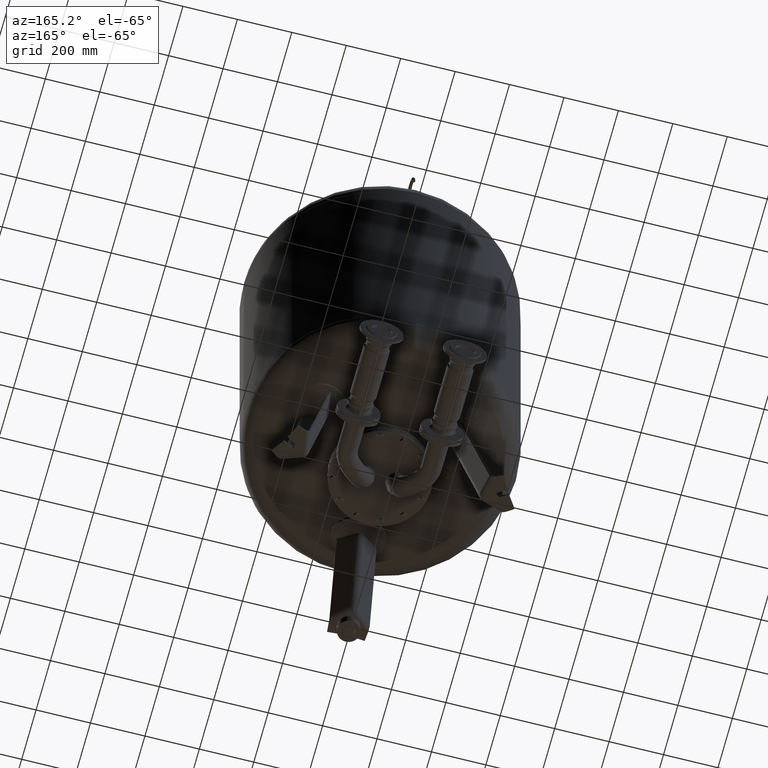
[diagram: clean part render]
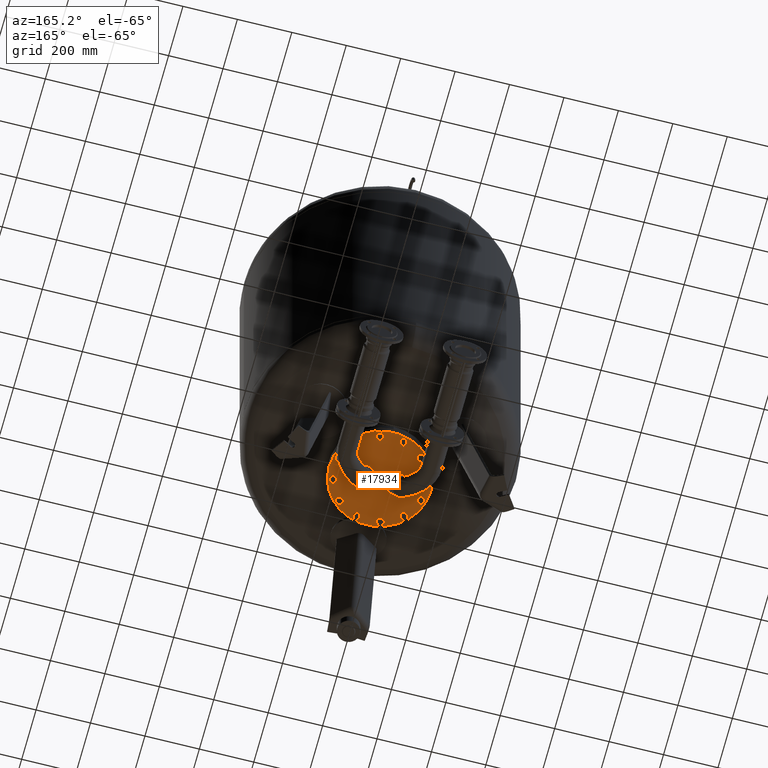
[diagram: same view with one face highlighted and labeled with its STEP entity id]
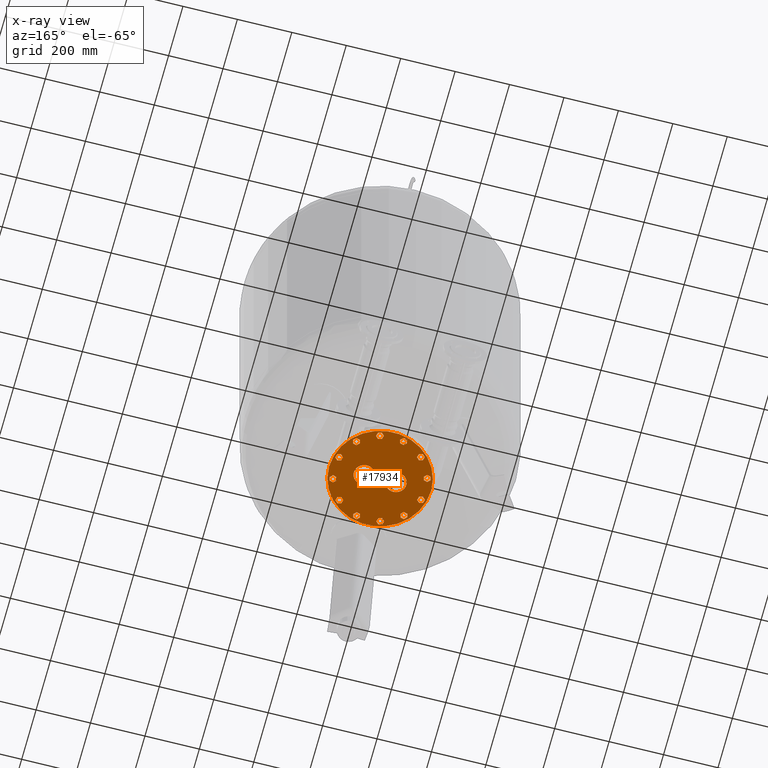
[diagram: x-ray of the same camera — body ghosted, the highlighted face saturated]
A machine part, auxiliary view. The second image highlights one B-rep face of the part: STEP entity #17934.
The next image is the same camera in x-ray: the body ghosted, the highlighted face saturated — about 0% of this face is hidden behind the body in this view.
In plain terms, the highlighted planar face has unit normal (0, 0, 1).
Its self-contained STEP definition (entity closure, byte-faithful):
#8756=CARTESIAN_POINT('',(31.594586975851886,-26.905413024148132,380.0));
#8757=VERTEX_POINT('',#8756);
#8783=CARTESIAN_POINT('',(85.405413024148146,26.905413024148132,380.0));
#8784=VERTEX_POINT('',#8783);
#8792=CARTESIAN_POINT('',(58.500000000000007,0.0,380.0));
#8793=DIRECTION('',(6.123234E-017,6.123234E-017,1.0));
#8794=DIRECTION('',(-0.707106781186547,-0.707106781186548,8.659561E-017));
#8795=AXIS2_PLACEMENT_3D('',#8792,#8793,#8794);
#8796=CIRCLE('',#8795,38.049999999999997);
#8797=EDGE_CURVE('',#8757,#8784,#8796,.T.);
#8937=CARTESIAN_POINT('',(-31.594586975851886,-26.905413024148132,380.0));
#8938=VERTEX_POINT('',#8937);
#8973=CARTESIAN_POINT('',(-85.405413024148146,26.905413024148132,380.0));
#8974=VERTEX_POINT('',#8973);
#8982=CARTESIAN_POINT('',(-20.450000000000014,4.659781E-015,380.0));
#8983=VERTEX_POINT('',#8982);
#8984=CARTESIAN_POINT('',(-58.500000000000007,0.0,380.0));
#8985=DIRECTION('',(6.123234E-017,-6.123234E-017,1.0));
#8986=DIRECTION('',(0.707106781186547,-0.707106781186548,-8.659561E-017));
#8987=AXIS2_PLACEMENT_3D('',#8984,#8985,#8986);
#8988=CIRCLE('',#8987,38.049999999999997);
#8989=EDGE_CURVE('',#8983,#8974,#8988,.T.);
#8991=CARTESIAN_POINT('',(-58.500000000000007,0.0,380.0));
#8992=DIRECTION('',(6.123234E-017,-6.123234E-017,1.0));
#8993=DIRECTION('',(0.707106781186547,-0.707106781186548,-8.659561E-017));
#8994=AXIS2_PLACEMENT_3D('',#8991,#8992,#8993);
#8995=CIRCLE('',#8994,38.049999999999997);
#8996=EDGE_CURVE('',#8938,#8983,#8995,.T.);
#9110=CARTESIAN_POINT('',(187.500000000000000,0.0,380.0));
#9111=VERTEX_POINT('',#9110);
#9120=CARTESIAN_POINT('',(-187.500000000000000,2.296213E-014,380.0));
#9121=VERTEX_POINT('',#9120);
#9122=CARTESIAN_POINT('',(-2.694223E-015,0.0,380.0));
#9123=DIRECTION('',(0.0,0.0,1.0));
#9124=DIRECTION('',(1.0,0.0,0.0));
#9125=AXIS2_PLACEMENT_3D('',#9122,#9123,#9124);
#9126=CIRCLE('',#9125,187.500000000000000);
#9127=EDGE_CURVE('',#9111,#9121,#9126,.T.);
#11833=CARTESIAN_POINT('',(-56.736450914477089,-158.206274014746920,380.0));
#11834=VERTEX_POINT('',#11833);
#11841=CARTESIAN_POINT('',(-46.938491943344474,-148.408315043614100,380.0));
#11842=VERTEX_POINT('',#11841);
#11843=CARTESIAN_POINT('',(-46.938491943344474,-148.408315043614100,380.0));
#11844=DIRECTION('',(-0.707106781186540,-0.707106781186555,0.0));
#11845=VECTOR('',#11844,13.856406460551034);
#11846=LINE('',#11843,#11845);
#11847=EDGE_CURVE('',#11842,#11834,#11846,.T.);
#11871=CARTESIAN_POINT('',(-53.150149025804723,-171.590534874551790,380.0));
#11872=VERTEX_POINT('',#11871);
#11879=CARTESIAN_POINT('',(-56.736450914477089,-158.206274014746920,380.0));
#11880=DIRECTION('',(0.258819045102532,-0.965925826289065,0.0));
#11881=VECTOR('',#11880,13.856406460551002);
#11882=LINE('',#11879,#11881);
#11883=EDGE_CURVE('',#11834,#11872,#11882,.T.);
#11902=CARTESIAN_POINT('',(-39.765888165999776,-175.176836763223890,380.0));
#11903=VERTEX_POINT('',#11902);
#11910=CARTESIAN_POINT('',(-53.150149025804723,-171.590534874551790,380.0));
#11911=DIRECTION('',(0.965925826289071,-0.258819045102512,0.0));
#11912=VECTOR('',#11911,13.856406460551007);
#11913=LINE('',#11910,#11912);
#11914=EDGE_CURVE('',#11872,#11903,#11913,.T.);
#11933=CARTESIAN_POINT('',(-29.967929194867157,-165.378877792091090,380.0));
#11934=VERTEX_POINT('',#11933);
#11941=CARTESIAN_POINT('',(-39.765888165999776,-175.176836763223890,380.0));
#11942=DIRECTION('',(0.707106781186541,0.707106781186554,0.0));
#11943=VECTOR('',#11942,13.856406460551014);
#11944=LINE('',#11941,#11943);
#11945=EDGE_CURVE('',#11903,#11934,#11944,.T.);
#11964=CARTESIAN_POINT('',(-33.554231083539520,-151.994616932286160,380.0));
#11965=VERTEX_POINT('',#11964);
#11972=CARTESIAN_POINT('',(-29.967929194867157,-165.378877792091090,380.0));
#11973=DIRECTION('',(-0.258819045102531,0.965925826289066,0.0));
#11974=VECTOR('',#11973,13.856406460551057);
#11975=LINE('',#11972,#11974);
#11976=EDGE_CURVE('',#11934,#11965,#11975,.T.);
#11994=CARTESIAN_POINT('',(-33.554231083539520,-151.994616932286160,380.0));
#11995=DIRECTION('',(-0.965925826289071,0.258819045102510,0.0));
#11996=VECTOR('',#11995,13.856406460551007);
#11997=LINE('',#11994,#11996);
#11998=EDGE_CURVE('',#11965,#11842,#11997,.T.);
#12241=CARTESIAN_POINT('',(29.967929194867498,-165.378877792091290,380.0));
#12242=VERTEX_POINT('',#12241);
#12249=CARTESIAN_POINT('',(33.554231083539570,-151.994616932286310,380.0));
#12250=VERTEX_POINT('',#12249);
#12251=CARTESIAN_POINT('',(33.554231083539570,-151.994616932286310,380.0));
#12252=DIRECTION('',(-0.258819045102510,-0.965925826289071,0.0));
#12253=VECTOR('',#12252,13.856406460551035);
#12254=LINE('',#12251,#12253);
#12255=EDGE_CURVE('',#12250,#12242,#12254,.T.);
#12279=CARTESIAN_POINT('',(39.765888166000309,-175.176836763223890,380.0));
#12280=VERTEX_POINT('',#12279);
#12287=CARTESIAN_POINT('',(29.967929194867498,-165.378877792091290,380.0));
#12288=DIRECTION('',(0.707106781186555,-0.707106781186540,0.0));
#12289=VECTOR('',#12288,13.856406460551010);
#12290=LINE('',#12287,#12289);
#12291=EDGE_CURVE('',#12242,#12280,#12290,.T.);
#12310=CARTESIAN_POINT('',(53.150149025805213,-171.590534874551540,380.0));
#12311=VERTEX_POINT('',#12310);
#12318=CARTESIAN_POINT('',(39.765888166000309,-175.176836763223890,380.0));
#12319=DIRECTION('',(0.965925826289066,0.258819045102530,0.0));
#12320=VECTOR('',#12319,13.856406460551034);
#12321=LINE('',#12318,#12320);
#12322=EDGE_CURVE('',#12280,#12311,#12321,.T.);
#12341=CARTESIAN_POINT('',(56.736450914477260,-158.206274014746550,380.0));
#12342=VERTEX_POINT('',#12341);
#12349=CARTESIAN_POINT('',(53.150149025805213,-171.590534874551540,380.0));
#12350=DIRECTION('',(0.258819045102509,0.965925826289072,0.0));
#12351=VECTOR('',#12350,13.856406460551028);
#12352=LINE('',#12349,#12351);
#12353=EDGE_CURVE('',#12311,#12342,#12352,.T.);
#12372=CARTESIAN_POINT('',(46.938491943344459,-148.408315043613980,380.0));
#12373=VERTEX_POINT('',#12372);
#12380=CARTESIAN_POINT('',(56.736450914477260,-158.206274014746550,380.0));
#12381=DIRECTION('',(-0.707106781186556,0.707106781186539,0.0));
#12382=VECTOR('',#12381,13.856406460550982);
#12383=LINE('',#12380,#12382);
#12384=EDGE_CURVE('',#12342,#12373,#12383,.T.);
#12402=CARTESIAN_POINT('',(46.938491943344459,-148.408315043613980,380.0));
#12403=DIRECTION('',(-0.965925826289066,-0.258819045102529,0.0));
#12404=VECTOR('',#12403,13.856406460551010);
#12405=LINE('',#12402,#12404);
#12406=EDGE_CURVE('',#12373,#12250,#12405,.T.);
#12649=CARTESIAN_POINT('',(108.642426877614170,-128.238344819879500,380.0));
#12650=VERTEX_POINT('',#12649);
#12657=CARTESIAN_POINT('',(105.056124988941800,-114.854083960074600,380.0));
#12658=VERTEX_POINT('',#12657);
#12659=CARTESIAN_POINT('',(105.056124988941800,-114.854083960074600,380.0));
#12660=DIRECTION('',(0.258819045102532,-0.965925826289065,0.0));
#12661=VECTOR('',#12660,13.856406460551030);
#12662=LINE('',#12659,#12661);
#12663=EDGE_CURVE('',#12658,#12650,#12662,.T.);
#12687=CARTESIAN_POINT('',(122.026687737419120,-131.824646708551570,380.0));
#12688=VERTEX_POINT('',#12687);
#12695=CARTESIAN_POINT('',(108.642426877614170,-128.238344819879500,380.0));
#12696=DIRECTION('',(0.965925826289071,-0.258819045102510,0.0));
#12697=VECTOR('',#12696,13.856406460551007);
#12698=LINE('',#12695,#12697);
#12699=EDGE_CURVE('',#12650,#12688,#12698,.T.);
#12718=CARTESIAN_POINT('',(131.824646708551710,-122.026687737418750,380.0));
#12719=VERTEX_POINT('',#12718);
#12726=CARTESIAN_POINT('',(122.026687737419120,-131.824646708551570,380.0));
#12727=DIRECTION('',(0.707106781186539,0.707106781186556,0.0));
#12728=VECTOR('',#12727,13.856406460551002);
#12729=LINE('',#12726,#12728);
#12730=EDGE_CURVE('',#12688,#12719,#12729,.T.);
#12749=CARTESIAN_POINT('',(128.238344819879390,-108.642426877613870,380.0));
#12750=VERTEX_POINT('',#12749);
#12757=CARTESIAN_POINT('',(131.824646708551710,-122.026687737418750,380.0));
#12758=DIRECTION('',(-0.258819045102529,0.965925826289066,0.0));
#12759=VECTOR('',#12758,13.856406460551005);
#12760=LINE('',#12757,#12759);
#12761=EDGE_CURVE('',#12719,#12750,#12760,.T.);
#12780=CARTESIAN_POINT('',(114.854083960074430,-105.056124988941800,380.0));
#12781=VERTEX_POINT('',#12780);
#12788=CARTESIAN_POINT('',(128.238344819879390,-108.642426877613870,380.0));
#12789=DIRECTION('',(-0.965925826289071,0.258819045102510,0.0));
#12790=VECTOR('',#12789,13.856406460551007);
#12791=LINE('',#12788,#12790);
#12792=EDGE_CURVE('',#12750,#12781,#12791,.T.);
#12810=CARTESIAN_POINT('',(114.854083960074430,-105.056124988941800,380.0));
#12811=DIRECTION('',(-0.707106781186541,-0.707106781186554,0.0));
#12812=VECTOR('',#12811,13.856406460551023);
#12813=LINE('',#12810,#12812);
#12814=EDGE_CURVE('',#12781,#12658,#12813,.T.);
#13057=CARTESIAN_POINT('',(158.206274014746920,-56.736450914477089,380.0));
#13058=VERTEX_POINT('',#13057);
#13065=CARTESIAN_POINT('',(148.408315043614100,-46.938491943344474,380.0));
#13066=VERTEX_POINT('',#13065);
#13067=CARTESIAN_POINT('',(148.408315043614100,-46.938491943344474,380.0));
#13068=DIRECTION('',(0.707106781186555,-0.707106781186540,0.0));
#13069=VECTOR('',#13068,13.856406460551034);
#13070=LINE('',#13067,#13069);
#13071=EDGE_CURVE('',#13066,#13058,#13070,.T.);
#13095=CARTESIAN_POINT('',(171.590534874551790,-53.150149025804723,380.0));
#13096=VERTEX_POINT('',#13095);
#13103=CARTESIAN_POINT('',(158.206274014746920,-56.736450914477089,380.0));
#13104=DIRECTION('',(0.965925826289065,0.258819045102532,0.0));
#13105=VECTOR('',#13104,13.856406460551002);
#13106=LINE('',#13103,#13105);
#13107=EDGE_CURVE('',#13058,#13096,#13106,.T.);
#13126=CARTESIAN_POINT('',(175.176836763223890,-39.765888165999776,380.0));
#13127=VERTEX_POINT('',#13126);
#13134=CARTESIAN_POINT('',(171.590534874551790,-53.150149025804723,380.0));
#13135=DIRECTION('',(0.258819045102512,0.965925826289071,0.0));
#13136=VECTOR('',#13135,13.856406460551007);
#13137=LINE('',#13134,#13136);
#13138=EDGE_CURVE('',#13096,#13127,#13137,.T.);
#13157=CARTESIAN_POINT('',(165.378877792091090,-29.967929194867153,380.0));
#13158=VERTEX_POINT('',#13157);
#13165=CARTESIAN_POINT('',(175.176836763223890,-39.765888165999776,380.0));
#13166=DIRECTION('',(-0.707106781186554,0.707106781186541,0.0));
#13167=VECTOR('',#13166,13.856406460551016);
#13168=LINE('',#13165,#13167);
#13169=EDGE_CURVE('',#13127,#13158,#13168,.T.);
#13188=CARTESIAN_POINT('',(151.994616932286160,-33.554231083539520,380.0));
#13189=VERTEX_POINT('',#13188);
#13196=CARTESIAN_POINT('',(165.378877792091090,-29.967929194867153,380.0));
#13197=DIRECTION('',(-0.965925826289066,-0.258819045102531,0.0));
#13198=VECTOR('',#13197,13.856406460551057);
#13199=LINE('',#13196,#13198);
#13200=EDGE_CURVE('',#13158,#13189,#13199,.T.);
#13218=CARTESIAN_POINT('',(151.994616932286160,-33.554231083539520,380.0));
#13219=DIRECTION('',(-0.258819045102510,-0.965925826289071,0.0));
#13220=VECTOR('',#13219,13.856406460551007);
#13221=LINE('',#13218,#13220);
#13222=EDGE_CURVE('',#13189,#13066,#13221,.T.);
#13465=CARTESIAN_POINT('',(165.378877792091290,29.967929194867420,380.0));
#13466=VERTEX_POINT('',#13465);
#13473=CARTESIAN_POINT('',(151.994616932286360,33.554231083539491,380.0));
#13474=VERTEX_POINT('',#13473);
#13475=CARTESIAN_POINT('',(151.994616932286360,33.554231083539491,380.0));
#13476=DIRECTION('',(0.965925826289071,-0.258819045102511,0.0));
#13477=VECTOR('',#13476,13.856406460550980);
#13478=LINE('',#13475,#13477);
#13479=EDGE_CURVE('',#13474,#13466,#13478,.T.);
#13503=CARTESIAN_POINT('',(175.176836763223890,39.765888166000245,380.0));
#13504=VERTEX_POINT('',#13503);
#13511=CARTESIAN_POINT('',(165.378877792091290,29.967929194867420,380.0));
#13512=DIRECTION('',(0.707106781186539,0.707106781186556,0.0));
#13513=VECTOR('',#13512,13.856406460551021);
#13514=LINE('',#13511,#13513);
#13515=EDGE_CURVE('',#13466,#13504,#13514,.T.);
#13534=CARTESIAN_POINT('',(171.590534874551540,53.150149025805135,380.0));
#13535=VERTEX_POINT('',#13534);
#13542=CARTESIAN_POINT('',(175.176836763223890,39.765888166000245,380.0));
#13543=DIRECTION('',(-0.258819045102531,0.965925826289066,0.0));
#13544=VECTOR('',#13543,13.856406460551018);
#13545=LINE('',#13542,#13544);
#13546=EDGE_CURVE('',#13504,#13535,#13545,.T.);
#13565=CARTESIAN_POINT('',(158.206274014746610,56.736450914477203,380.0));
#13566=VERTEX_POINT('',#13565);
#13573=CARTESIAN_POINT('',(171.590534874551540,53.150149025805135,380.0));
#13574=DIRECTION('',(-0.965925826289071,0.258819045102511,0.0));
#13575=VECTOR('',#13574,13.856406460550980);
#13576=LINE('',#13573,#13575);
#13577=EDGE_CURVE('',#13535,#13566,#13576,.T.);
#13596=CARTESIAN_POINT('',(148.408315043613980,46.938491943344374,380.0));
#13597=VERTEX_POINT('',#13596);
#13604=CARTESIAN_POINT('',(158.206274014746610,56.736450914477203,380.0));
#13605=DIRECTION('',(-0.707106781186540,-0.707106781186555,0.0));
#13606=VECTOR('',#13605,13.856406460551042);
#13607=LINE('',#13604,#13606);
#13608=EDGE_CURVE('',#13566,#13597,#13607,.T.);
#13626=CARTESIAN_POINT('',(148.408315043613980,46.938491943344374,380.0));
#13627=DIRECTION('',(0.258819045102533,-0.965925826289065,0.0));
#13628=VECTOR('',#13627,13.856406460551019);
#13629=LINE('',#13626,#13628);
#13630=EDGE_CURVE('',#13597,#13474,#13629,.T.);
#13873=CARTESIAN_POINT('',(128.238344819879500,108.642426877614160,380.0));
#13874=VERTEX_POINT('',#13873);
#13881=CARTESIAN_POINT('',(114.854083960074600,105.056124988941800,380.0));
#13882=VERTEX_POINT('',#13881);
#13883=CARTESIAN_POINT('',(114.854083960074600,105.056124988941800,380.0));
#13884=DIRECTION('',(0.965925826289066,0.258819045102531,0.0));
#13885=VECTOR('',#13884,13.856406460551025);
#13886=LINE('',#13883,#13885);
#13887=EDGE_CURVE('',#13882,#13874,#13886,.T.);
#13911=CARTESIAN_POINT('',(131.824646708551570,122.026687737419080,380.0));
#13912=VERTEX_POINT('',#13911);
#13919=CARTESIAN_POINT('',(128.238344819879500,108.642426877614160,380.0));
#13920=DIRECTION('',(0.258819045102511,0.965925826289071,0.0));
#13921=VECTOR('',#13920,13.856406460550980);
#13922=LINE('',#13919,#13921);
#13923=EDGE_CURVE('',#13874,#13912,#13922,.T.);
#13942=CARTESIAN_POINT('',(122.026687737418770,131.824646708551710,380.0));
#13943=VERTEX_POINT('',#13942);
#13950=CARTESIAN_POINT('',(131.824646708551570,122.026687737419080,380.0));
#13951=DIRECTION('',(-0.707106781186554,0.707106781186541,0.0));
#13952=VECTOR('',#13951,13.856406460551023);
#13953=LINE('',#13950,#13952);
#13954=EDGE_CURVE('',#13912,#13943,#13953,.T.);
#13973=CARTESIAN_POINT('',(108.642426877613890,128.238344819879360,380.0));
#13974=VERTEX_POINT('',#13973);
#13981=CARTESIAN_POINT('',(122.026687737418770,131.824646708551710,380.0));
#13982=DIRECTION('',(-0.965925826289066,-0.258819045102531,0.0));
#13983=VECTOR('',#13982,13.856406460551012);
#13984=LINE('',#13981,#13983);
#13985=EDGE_CURVE('',#13943,#13974,#13984,.T.);
#14004=CARTESIAN_POINT('',(105.056124988941800,114.854083960074430,380.0));
#14005=VERTEX_POINT('',#14004);
#14012=CARTESIAN_POINT('',(108.642426877613890,128.238344819879360,380.0));
#14013=DIRECTION('',(-0.258819045102512,-0.965925826289071,0.0));
#14014=VECTOR('',#14013,13.856406460550984);
#14015=LINE('',#14012,#14014);
#14016=EDGE_CURVE('',#13974,#14005,#14015,.T.);
#14034=CARTESIAN_POINT('',(105.056124988941800,114.854083960074430,380.0));
#14035=DIRECTION('',(0.707106781186554,-0.707106781186541,0.0));
#14036=VECTOR('',#14035,13.856406460551023);
#14037=LINE('',#14034,#14036);
#14038=EDGE_CURVE('',#14005,#13882,#14037,.T.);
#14281=CARTESIAN_POINT('',(56.736450914477103,158.206274014746900,380.0));
#14282=VERTEX_POINT('',#14281);
#14289=CARTESIAN_POINT('',(46.938491943344488,148.408315043614100,380.0));
#14290=VERTEX_POINT('',#14289);
#14291=CARTESIAN_POINT('',(46.938491943344488,148.408315043614100,380.0));
#14292=DIRECTION('',(0.707106781186541,0.707106781186554,0.0));
#14293=VECTOR('',#14292,13.856406460551012);
#14294=LINE('',#14291,#14293);
#14295=EDGE_CURVE('',#14290,#14282,#14294,.T.);
#14319=CARTESIAN_POINT('',(53.150149025804758,171.590534874551820,380.0));
#14320=VERTEX_POINT('',#14319);
#14327=CARTESIAN_POINT('',(56.736450914477103,158.206274014746900,380.0));
#14328=DIRECTION('',(-0.258819045102530,0.965925826289066,0.0));
#14329=VECTOR('',#14328,13.856406460551051);
#14330=LINE('',#14327,#14329);
#14331=EDGE_CURVE('',#14282,#14320,#14330,.T.);
#14350=CARTESIAN_POINT('',(39.765888165999783,175.176836763223830,380.0));
#14351=VERTEX_POINT('',#14350);
#14358=CARTESIAN_POINT('',(53.150149025804758,171.590534874551820,380.0));
#14359=DIRECTION('',(-0.965925826289072,0.258819045102506,0.0));
#14360=VECTOR('',#14359,13.856406460551014);
#14361=LINE('',#14358,#14360);
#14362=EDGE_CURVE('',#14320,#14351,#14361,.T.);
#14381=CARTESIAN_POINT('',(29.967929194867185,165.378877792091090,380.0));
#14382=VERTEX_POINT('',#14381);
#14389=CARTESIAN_POINT('',(39.765888165999783,175.176836763223830,380.0));
#14390=DIRECTION('',(-0.707106781186542,-0.707106781186553,0.0));
#14391=VECTOR('',#14390,13.856406460550959);
#14392=LINE('',#14389,#14391);
#14393=EDGE_CURVE('',#14351,#14382,#14392,.T.);
#14412=CARTESIAN_POINT('',(33.554231083539548,151.994616932286190,380.0));
#14413=VERTEX_POINT('',#14412);
#14420=CARTESIAN_POINT('',(29.967929194867185,165.378877792091090,380.0));
#14421=DIRECTION('',(0.258819045102531,-0.965925826289065,0.0));
#14422=VECTOR('',#14421,13.856406460551028);
#14423=LINE('',#14420,#14422);
#14424=EDGE_CURVE('',#14382,#14413,#14423,.T.);
#14442=CARTESIAN_POINT('',(33.554231083539548,151.994616932286190,380.0));
#14443=DIRECTION('',(0.965925826289071,-0.258819045102513,0.0));
#14444=VECTOR('',#14443,13.856406460551000);
#14445=LINE('',#14442,#14444);
#14446=EDGE_CURVE('',#14413,#14290,#14445,.T.);
#14689=CARTESIAN_POINT('',(-29.967929194867406,165.378877792091290,380.0));
#14690=VERTEX_POINT('',#14689);
#14697=CARTESIAN_POINT('',(-33.554231083539491,151.994616932286360,380.0));
#14698=VERTEX_POINT('',#14697);
#14699=CARTESIAN_POINT('',(-33.554231083539491,151.994616932286360,380.0));
#14700=DIRECTION('',(0.258819045102512,0.965925826289071,0.0));
#14701=VECTOR('',#14700,13.856406460550984);
#14702=LINE('',#14699,#14701);
#14703=EDGE_CURVE('',#14698,#14690,#14702,.T.);
#14727=CARTESIAN_POINT('',(-39.765888166000217,175.176836763223920,380.0));
#14728=VERTEX_POINT('',#14727);
#14735=CARTESIAN_POINT('',(-29.967929194867406,165.378877792091290,380.0));
#14736=DIRECTION('',(-0.707106781186554,0.707106781186541,0.0));
#14737=VECTOR('',#14736,13.856406460551030);
#14738=LINE('',#14735,#14737);
#14739=EDGE_CURVE('',#14690,#14728,#14738,.T.);
#14758=CARTESIAN_POINT('',(-53.150149025805106,171.590534874551570,380.0));
#14759=VERTEX_POINT('',#14758);
#14766=CARTESIAN_POINT('',(-39.765888166000217,175.176836763223920,380.0));
#14767=DIRECTION('',(-0.965925826289066,-0.258819045102531,0.0));
#14768=VECTOR('',#14767,13.856406460551018);
#14769=LINE('',#14766,#14768);
#14770=EDGE_CURVE('',#14728,#14759,#14769,.T.);
#14789=CARTESIAN_POINT('',(-56.736450914477189,158.206274014746610,380.0));
#14790=VERTEX_POINT('',#14789);
#14797=CARTESIAN_POINT('',(-53.150149025805106,171.590534874551570,380.0));
#14798=DIRECTION('',(-0.258819045102511,-0.965925826289071,0.0));
#14799=VECTOR('',#14798,13.856406460551010);
#14800=LINE('',#14797,#14799);
#14801=EDGE_CURVE('',#14759,#14790,#14800,.T.);
#14820=CARTESIAN_POINT('',(-46.938491943344374,148.408315043613980,380.0));
#14821=VERTEX_POINT('',#14820);
#14828=CARTESIAN_POINT('',(-56.736450914477189,158.206274014746610,380.0));
#14829=DIRECTION('',(0.707106781186554,-0.707106781186541,0.0));
#14830=VECTOR('',#14829,13.856406460551034);
#14831=LINE('',#14828,#14830);
#14832=EDGE_CURVE('',#14790,#14821,#14831,.T.);
#14850=CARTESIAN_POINT('',(-46.938491943344374,148.408315043613980,380.0));
#14851=DIRECTION('',(0.965925826289065,0.258819045102533,0.0));
#14852=VECTOR('',#14851,13.856406460551019);
#14853=LINE('',#14850,#14852);
#14854=EDGE_CURVE('',#14821,#14698,#14853,.T.);
#15097=CARTESIAN_POINT('',(-108.642426877614160,128.238344819879530,380.0));
#15098=VERTEX_POINT('',#15097);
#15105=CARTESIAN_POINT('',(-105.056124988941800,114.854083960074650,380.0));
#15106=VERTEX_POINT('',#15105);
#15107=CARTESIAN_POINT('',(-105.056124988941800,114.854083960074650,380.0));
#15108=DIRECTION('',(-0.258819045102531,0.965925826289066,0.0));
#15109=VECTOR('',#15108,13.856406460551012);
#15110=LINE('',#15107,#15109);
#15111=EDGE_CURVE('',#15106,#15098,#15110,.T.);
#15135=CARTESIAN_POINT('',(-122.026687737419110,131.824646708551600,380.0));
#15136=VERTEX_POINT('',#15135);
#15143=CARTESIAN_POINT('',(-108.642426877614160,128.238344819879530,380.0));
#15144=DIRECTION('',(-0.965925826289071,0.258819045102510,0.0));
#15145=VECTOR('',#15144,13.856406460551007);
#15146=LINE('',#15143,#15145);
#15147=EDGE_CURVE('',#15098,#15136,#15146,.T.);
#15166=CARTESIAN_POINT('',(-131.824646708551710,122.026687737418770,380.0));
#15167=VERTEX_POINT('',#15166);
#15174=CARTESIAN_POINT('',(-122.026687737419110,131.824646708551600,380.0));
#15175=DIRECTION('',(-0.707106781186539,-0.707106781186556,0.0));
#15176=VECTOR('',#15175,13.856406460551023);
#15177=LINE('',#15174,#15176);
#15178=EDGE_CURVE('',#15136,#15167,#15177,.T.);
#15197=CARTESIAN_POINT('',(-128.238344819879390,108.642426877613900,380.0));
#15198=VERTEX_POINT('',#15197);
#15205=CARTESIAN_POINT('',(-131.824646708551710,122.026687737418770,380.0));
#15206=DIRECTION('',(0.258819045102529,-0.965925826289066,0.0));
#15207=VECTOR('',#15206,13.856406460550991);
#15208=LINE('',#15205,#15207);
#15209=EDGE_CURVE('',#15167,#15198,#15208,.T.);
#15228=CARTESIAN_POINT('',(-114.854083960074420,105.056124988941820,380.0));
#15229=VERTEX_POINT('',#15228);
#15236=CARTESIAN_POINT('',(-128.238344819879390,108.642426877613900,380.0));
#15237=DIRECTION('',(0.965925826289071,-0.258819045102511,0.0));
#15238=VECTOR('',#15237,13.856406460551025);
#15239=LINE('',#15236,#15238);
#15240=EDGE_CURVE('',#15198,#15229,#15239,.T.);
#15258=CARTESIAN_POINT('',(-114.854083960074420,105.056124988941820,380.0));
#15259=DIRECTION('',(0.707106781186540,0.707106781186555,0.0));
#15260=VECTOR('',#15259,13.856406460551034);
#15261=LINE('',#15258,#15260);
#15262=EDGE_CURVE('',#15229,#15106,#15261,.T.);
#15505=CARTESIAN_POINT('',(-158.206274014746920,56.736450914477146,380.0));
#15506=VERTEX_POINT('',#15505);
#15513=CARTESIAN_POINT('',(-148.408315043614100,46.938491943344545,380.0));
#15514=VERTEX_POINT('',#15513);
#15515=CARTESIAN_POINT('',(-148.408315043614100,46.938491943344545,380.0));
#15516=DIRECTION('',(-0.707106781186556,0.707106781186539,0.0));
#15517=VECTOR('',#15516,13.856406460551023);
#15518=LINE('',#15515,#15517);
#15519=EDGE_CURVE('',#15514,#15506,#15518,.T.);
#15543=CARTESIAN_POINT('',(-171.590534874551790,53.150149025804794,380.0));
#15544=VERTEX_POINT('',#15543);
#15551=CARTESIAN_POINT('',(-158.206274014746920,56.736450914477146,380.0));
#15552=DIRECTION('',(-0.965925826289066,-0.258819045102531,0.0));
#15553=VECTOR('',#15552,13.856406460550998);
#15554=LINE('',#15551,#15553);
#15555=EDGE_CURVE('',#15506,#15544,#15554,.T.);
#15574=CARTESIAN_POINT('',(-175.176836763223890,39.765888165999847,380.0));
#15575=VERTEX_POINT('',#15574);
#15582=CARTESIAN_POINT('',(-171.590534874551790,53.150149025804794,380.0));
#15583=DIRECTION('',(-0.258819045102512,-0.965925826289071,0.0));
#15584=VECTOR('',#15583,13.856406460551007);
#15585=LINE('',#15582,#15584);
#15586=EDGE_CURVE('',#15544,#15575,#15585,.T.);
#15605=CARTESIAN_POINT('',(-165.378877792091030,29.967929194867224,380.0));
#15606=VERTEX_POINT('',#15605);
#15613=CARTESIAN_POINT('',(-175.176836763223890,39.765888165999847,380.0));
#15614=DIRECTION('',(0.707106781186556,-0.707106781186539,0.0));
#15615=VECTOR('',#15614,13.856406460551057);
#15616=LINE('',#15613,#15615);
#15617=EDGE_CURVE('',#15575,#15606,#15616,.T.);
#15636=CARTESIAN_POINT('',(-151.994616932286160,33.554231083539591,380.0));
#15637=VERTEX_POINT('',#15636);
#15644=CARTESIAN_POINT('',(-165.378877792091030,29.967929194867224,380.0));
#15645=DIRECTION('',(0.965925826289065,0.258819045102532,0.0));
#15646=VECTOR('',#15645,13.856406460551002);
#15647=LINE('',#15644,#15646);
#15648=EDGE_CURVE('',#15606,#15637,#15647,.T.);
#15666=CARTESIAN_POINT('',(-151.994616932286160,33.554231083539591,380.0));
#15667=DIRECTION('',(0.258819045102510,0.965925826289071,0.0));
#15668=VECTOR('',#15667,13.856406460551007);
#15669=LINE('',#15666,#15668);
#15670=EDGE_CURVE('',#15637,#15514,#15669,.T.);
#15913=CARTESIAN_POINT('',(-165.378877792091290,-29.967929194867395,380.0));
#15914=VERTEX_POINT('',#15913);
#15921=CARTESIAN_POINT('',(-151.994616932286360,-33.554231083539463,380.0));
#15922=VERTEX_POINT('',#15921);
#15923=CARTESIAN_POINT('',(-151.994616932286360,-33.554231083539463,380.0));
#15924=DIRECTION('',(-0.965925826289071,0.258819045102511,0.0));
#15925=VECTOR('',#15924,13.856406460550980);
#15926=LINE('',#15923,#15925);
#15927=EDGE_CURVE('',#15922,#15914,#15926,.T.);
#15951=CARTESIAN_POINT('',(-175.176836763223920,-39.765888166000195,380.0));
#15952=VERTEX_POINT('',#15951);
#15959=CARTESIAN_POINT('',(-165.378877792091290,-29.967929194867395,380.0));
#15960=DIRECTION('',(-0.707106781186541,-0.707106781186554,0.0));
#15961=VECTOR('',#15960,13.856406460551023);
#15962=LINE('',#15959,#15961);
#15963=EDGE_CURVE('',#15914,#15952,#15962,.T.);
#15982=CARTESIAN_POINT('',(-171.590534874551540,-53.150149025805078,380.0));
#15983=VERTEX_POINT('',#15982);
#15990=CARTESIAN_POINT('',(-175.176836763223920,-39.765888166000195,380.0));
#15991=DIRECTION('',(0.258819045102533,-0.965925826289065,0.0));
#15992=VECTOR('',#15991,13.856406460551019);
#15993=LINE('',#15990,#15992);
#15994=EDGE_CURVE('',#15952,#15983,#15993,.T.);
#16013=CARTESIAN_POINT('',(-158.206274014746610,-56.736450914477167,380.0));
#16014=VERTEX_POINT('',#16013);
#16021=CARTESIAN_POINT('',(-171.590534874551540,-53.150149025805078,380.0));
#16022=DIRECTION('',(0.965925826289071,-0.258819045102512,0.0));
#16023=VECTOR('',#16022,13.856406460550986);
#16024=LINE('',#16021,#16023);
#16025=EDGE_CURVE('',#15983,#16014,#16024,.T.);
#16044=CARTESIAN_POINT('',(-148.408315043614010,-46.938491943344346,380.0));
#16045=VERTEX_POINT('',#16044);
#16052=CARTESIAN_POINT('',(-158.206274014746610,-56.736450914477167,380.0));
#16053=DIRECTION('',(0.707106781186540,0.707106781186555,0.0));
#16054=VECTOR('',#16053,13.856406460551018);
#16055=LINE('',#16052,#16054);
#16056=EDGE_CURVE('',#16014,#16045,#16055,.T.);
#16074=CARTESIAN_POINT('',(-148.408315043614010,-46.938491943344346,380.0));
#16075=DIRECTION('',(-0.258819045102531,0.965925826289066,0.0));
#16076=VECTOR('',#16075,13.856406460551012);
#16077=LINE('',#16074,#16076);
#16078=EDGE_CURVE('',#16045,#15922,#16077,.T.);
#16529=CARTESIAN_POINT('',(-128.238344819879500,-108.642426877614130,380.0));
#16530=VERTEX_POINT('',#16529);
#16537=CARTESIAN_POINT('',(-114.854083960074630,-105.056124988941790,380.0));
#16538=VERTEX_POINT('',#16537);
#16539=CARTESIAN_POINT('',(-114.854083960074630,-105.056124988941790,380.0));
#16540=DIRECTION('',(-0.965925826289066,-0.258819045102530,0.0));
#16541=VECTOR('',#16540,13.856406460550994);
#16542=LINE('',#16539,#16541);
#16543=EDGE_CURVE('',#16538,#16530,#16542,.T.);
#16567=CARTESIAN_POINT('',(-131.824646708551600,-122.026687737419080,380.0));
#16568=VERTEX_POINT('',#16567);
#16575=CARTESIAN_POINT('',(-128.238344819879500,-108.642426877614130,380.0));
#16576=DIRECTION('',(-0.258819045102512,-0.965925826289071,0.0));
#16577=VECTOR('',#16576,13.856406460551014);
#16578=LINE('',#16575,#16577);
#16579=EDGE_CURVE('',#16530,#16568,#16578,.T.);
#16598=CARTESIAN_POINT('',(-122.026687737418780,-131.824646708551710,380.0));
#16599=VERTEX_POINT('',#16598);
#16606=CARTESIAN_POINT('',(-131.824646708551600,-122.026687737419080,380.0));
#16607=DIRECTION('',(0.707106781186554,-0.707106781186541,0.0));
#16608=VECTOR('',#16607,13.856406460551034);
#16609=LINE('',#16606,#16608);
#16610=EDGE_CURVE('',#16568,#16599,#16609,.T.);
#16629=CARTESIAN_POINT('',(-108.642426877613900,-128.238344819879360,380.0));
#16630=VERTEX_POINT('',#16629);
#16637=CARTESIAN_POINT('',(-122.026687737418780,-131.824646708551710,380.0));
#16638=DIRECTION('',(0.965925826289066,0.258819045102531,0.0));
#16639=VECTOR('',#16638,13.856406460551012);
#16640=LINE('',#16637,#16639);
#16641=EDGE_CURVE('',#16599,#16630,#16640,.T.);
#16660=CARTESIAN_POINT('',(-105.056124988941820,-114.854083960074410,380.0));
#16661=VERTEX_POINT('',#16660);
#16668=CARTESIAN_POINT('',(-108.642426877613900,-128.238344819879360,380.0));
#16669=DIRECTION('',(0.258819045102511,0.965925826289071,0.0));
#16670=VECTOR('',#16669,13.856406460551010);
#16671=LINE('',#16668,#16670);
#16672=EDGE_CURVE('',#16630,#16661,#16671,.T.);
#16690=CARTESIAN_POINT('',(-105.056124988941820,-114.854083960074410,380.0));
#16691=DIRECTION('',(-0.707106781186555,0.707106781186540,0.0));
#16692=VECTOR('',#16691,13.856406460551023);
#16693=LINE('',#16690,#16692);
#16694=EDGE_CURVE('',#16661,#16538,#16693,.T.);
#17431=CARTESIAN_POINT('',(-58.500000000000007,0.0,380.0));
#17432=DIRECTION('',(6.123234E-017,-6.123234E-017,1.0));
#17433=DIRECTION('',(0.707106781186547,-0.707106781186548,-8.659561E-017));
#17434=AXIS2_PLACEMENT_3D('',#17431,#17432,#17433);
#17435=CIRCLE('',#17434,38.049999999999997);
#17436=EDGE_CURVE('',#8974,#8938,#17435,.T.);
#17772=CARTESIAN_POINT('',(20.450000000000006,3.707229E-015,380.0));
#17773=VERTEX_POINT('',#17772);
#17774=CARTESIAN_POINT('',(58.500000000000007,0.0,380.0));
#17775=DIRECTION('',(6.123234E-017,6.123234E-017,1.0));
#17776=DIRECTION('',(-0.707106781186547,-0.707106781186548,8.659561E-017));
#17777=AXIS2_PLACEMENT_3D('',#17774,#17775,#17776);
#17778=CIRCLE('',#17777,38.049999999999997);
#17779=EDGE_CURVE('',#17773,#8757,#17778,.T.);
#17781=CARTESIAN_POINT('',(58.500000000000007,0.0,380.0));
#17782=DIRECTION('',(6.123234E-017,6.123234E-017,1.0));
#17783=DIRECTION('',(-0.707106781186547,-0.707106781186548,8.659561E-017));
#17784=AXIS2_PLACEMENT_3D('',#17781,#17782,#17783);
#17785=CIRCLE('',#17784,38.049999999999997);
#17786=EDGE_CURVE('',#8784,#17773,#17785,.T.);
#17809=CARTESIAN_POINT('',(-2.694223E-015,0.0,380.0));
#17810=DIRECTION('',(0.0,0.0,1.0));
#17811=DIRECTION('',(1.0,0.0,0.0));
#17812=AXIS2_PLACEMENT_3D('',#17809,#17810,#17811);
#17813=CIRCLE('',#17812,187.500000000000000);
#17814=EDGE_CURVE('',#9121,#9111,#17813,.T.);
#17819=CARTESIAN_POINT('',(-2.694223E-015,0.0,380.0));
#17820=DIRECTION('',(0.0,0.0,1.0));
#17821=DIRECTION('',(1.0,0.0,0.0));
#17822=AXIS2_PLACEMENT_3D('',#17819,#17820,#17821);
#17823=PLANE('',#17822);
#17824=ORIENTED_EDGE('',*,*,#17814,.F.);
#17825=ORIENTED_EDGE('',*,*,#9127,.F.);
#17826=EDGE_LOOP('',(#17824,#17825));
#17827=FACE_OUTER_BOUND('',#17826,.T.);
#17828=ORIENTED_EDGE('',*,*,#11847,.T.);
#17829=ORIENTED_EDGE('',*,*,#11883,.T.);
#17830=ORIENTED_EDGE('',*,*,#11914,.T.);
#17831=ORIENTED_EDGE('',*,*,#11945,.T.);
#17832=ORIENTED_EDGE('',*,*,#11976,.T.);
#17833=ORIENTED_EDGE('',*,*,#11998,.T.);
#17834=EDGE_LOOP('',(#17828,#17829,#17830,#17831,#17832,#17833));
#17835=FACE_BOUND('',#17834,.T.);
#17836=ORIENTED_EDGE('',*,*,#12255,.T.);
#17837=ORIENTED_EDGE('',*,*,#12291,.T.);
#17838=ORIENTED_EDGE('',*,*,#12322,.T.);
#17839=ORIENTED_EDGE('',*,*,#12353,.T.);
#17840=ORIENTED_EDGE('',*,*,#12384,.T.);
#17841=ORIENTED_EDGE('',*,*,#12406,.T.);
#17842=EDGE_LOOP('',(#17836,#17837,#17838,#17839,#17840,#17841));
#17843=FACE_BOUND('',#17842,.T.);
#17844=ORIENTED_EDGE('',*,*,#12663,.T.);
#17845=ORIENTED_EDGE('',*,*,#12699,.T.);
#17846=ORIENTED_EDGE('',*,*,#12730,.T.);
#17847=ORIENTED_EDGE('',*,*,#12761,.T.);
#17848=ORIENTED_EDGE('',*,*,#12792,.T.);
#17849=ORIENTED_EDGE('',*,*,#12814,.T.);
#17850=EDGE_LOOP('',(#17844,#17845,#17846,#17847,#17848,#17849));
#17851=FACE_BOUND('',#17850,.T.);
#17852=ORIENTED_EDGE('',*,*,#13071,.T.);
#17853=ORIENTED_EDGE('',*,*,#13107,.T.);
#17854=ORIENTED_EDGE('',*,*,#13138,.T.);
#17855=ORIENTED_EDGE('',*,*,#13169,.T.);
#17856=ORIENTED_EDGE('',*,*,#13200,.T.);
#17857=ORIENTED_EDGE('',*,*,#13222,.T.);
#17858=EDGE_LOOP('',(#17852,#17853,#17854,#17855,#17856,#17857));
#17859=FACE_BOUND('',#17858,.T.);
#17860=ORIENTED_EDGE('',*,*,#13479,.T.);
#17861=ORIENTED_EDGE('',*,*,#13515,.T.);
#17862=ORIENTED_EDGE('',*,*,#13546,.T.);
#17863=ORIENTED_EDGE('',*,*,#13577,.T.);
#17864=ORIENTED_EDGE('',*,*,#13608,.T.);
#17865=ORIENTED_EDGE('',*,*,#13630,.T.);
#17866=EDGE_LOOP('',(#17860,#17861,#17862,#17863,#17864,#17865));
#17867=FACE_BOUND('',#17866,.T.);
#17868=ORIENTED_EDGE('',*,*,#13887,.T.);
#17869=ORIENTED_EDGE('',*,*,#13923,.T.);
#17870=ORIENTED_EDGE('',*,*,#13954,.T.);
#17871=ORIENTED_EDGE('',*,*,#13985,.T.);
#17872=ORIENTED_EDGE('',*,*,#14016,.T.);
#17873=ORIENTED_EDGE('',*,*,#14038,.T.);
#17874=EDGE_LOOP('',(#17868,#17869,#17870,#17871,#17872,#17873));
#17875=FACE_BOUND('',#17874,.T.);
#17876=ORIENTED_EDGE('',*,*,#14295,.T.);
#17877=ORIENTED_EDGE('',*,*,#14331,.T.);
#17878=ORIENTED_EDGE('',*,*,#14362,.T.);
#17879=ORIENTED_EDGE('',*,*,#14393,.T.);
#17880=ORIENTED_EDGE('',*,*,#14424,.T.);
#17881=ORIENTED_EDGE('',*,*,#14446,.T.);
#17882=EDGE_LOOP('',(#17876,#17877,#17878,#17879,#17880,#17881));
#17883=FACE_BOUND('',#17882,.T.);
#17884=ORIENTED_EDGE('',*,*,#14703,.T.);
#17885=ORIENTED_EDGE('',*,*,#14739,.T.);
#17886=ORIENTED_EDGE('',*,*,#14770,.T.);
#17887=ORIENTED_EDGE('',*,*,#14801,.T.);
#17888=ORIENTED_EDGE('',*,*,#14832,.T.);
#17889=ORIENTED_EDGE('',*,*,#14854,.T.);
#17890=EDGE_LOOP('',(#17884,#17885,#17886,#17887,#17888,#17889));
#17891=FACE_BOUND('',#17890,.T.);
#17892=ORIENTED_EDGE('',*,*,#15111,.T.);
#17893=ORIENTED_EDGE('',*,*,#15147,.T.);
#17894=ORIENTED_EDGE('',*,*,#15178,.T.);
#17895=ORIENTED_EDGE('',*,*,#15209,.T.);
#17896=ORIENTED_EDGE('',*,*,#15240,.T.);
#17897=ORIENTED_EDGE('',*,*,#15262,.T.);
#17898=EDGE_LOOP('',(#17892,#17893,#17894,#17895,#17896,#17897));
#17899=FACE_BOUND('',#17898,.T.);
#17900=ORIENTED_EDGE('',*,*,#15519,.T.);
#17901=ORIENTED_EDGE('',*,*,#15555,.T.);
#17902=ORIENTED_EDGE('',*,*,#15586,.T.);
#17903=ORIENTED_EDGE('',*,*,#15617,.T.);
#17904=ORIENTED_EDGE('',*,*,#15648,.T.);
#17905=ORIENTED_EDGE('',*,*,#15670,.T.);
#17906=EDGE_LOOP('',(#17900,#17901,#17902,#17903,#17904,#17905));
#17907=FACE_BOUND('',#17906,.T.);
#17908=ORIENTED_EDGE('',*,*,#15927,.T.);
#17909=ORIENTED_EDGE('',*,*,#15963,.T.);
#17910=ORIENTED_EDGE('',*,*,#15994,.T.);
#17911=ORIENTED_EDGE('',*,*,#16025,.T.);
#17912=ORIENTED_EDGE('',*,*,#16056,.T.);
#17913=ORIENTED_EDGE('',*,*,#16078,.T.);
#17914=EDGE_LOOP('',(#17908,#17909,#17910,#17911,#17912,#17913));
#17915=FACE_BOUND('',#17914,.T.);
#17916=ORIENTED_EDGE('',*,*,#16543,.T.);
#17917=ORIENTED_EDGE('',*,*,#16579,.T.);
#17918=ORIENTED_EDGE('',*,*,#16610,.T.);
#17919=ORIENTED_EDGE('',*,*,#16641,.T.);
#17920=ORIENTED_EDGE('',*,*,#16672,.T.);
#17921=ORIENTED_EDGE('',*,*,#16694,.T.);
#17922=EDGE_LOOP('',(#17916,#17917,#17918,#17919,#17920,#17921));
#17923=FACE_BOUND('',#17922,.T.);
#17924=ORIENTED_EDGE('',*,*,#8989,.T.);
#17925=ORIENTED_EDGE('',*,*,#17436,.T.);
#17926=ORIENTED_EDGE('',*,*,#8996,.T.);
#17927=EDGE_LOOP('',(#17924,#17925,#17926));
#17928=FACE_BOUND('',#17927,.T.);
#17929=ORIENTED_EDGE('',*,*,#17779,.T.);
#17930=ORIENTED_EDGE('',*,*,#8797,.T.);
#17931=ORIENTED_EDGE('',*,*,#17786,.T.);
#17932=EDGE_LOOP('',(#17929,#17930,#17931));
#17933=FACE_BOUND('',#17932,.T.);
#17934=ADVANCED_FACE('',(#17827,#17835,#17843,#17851,#17859,#17867,#17875,#17883,#17891,#17899,#17907,#17915,#17923,#17928,#17933),#17823,.F.);